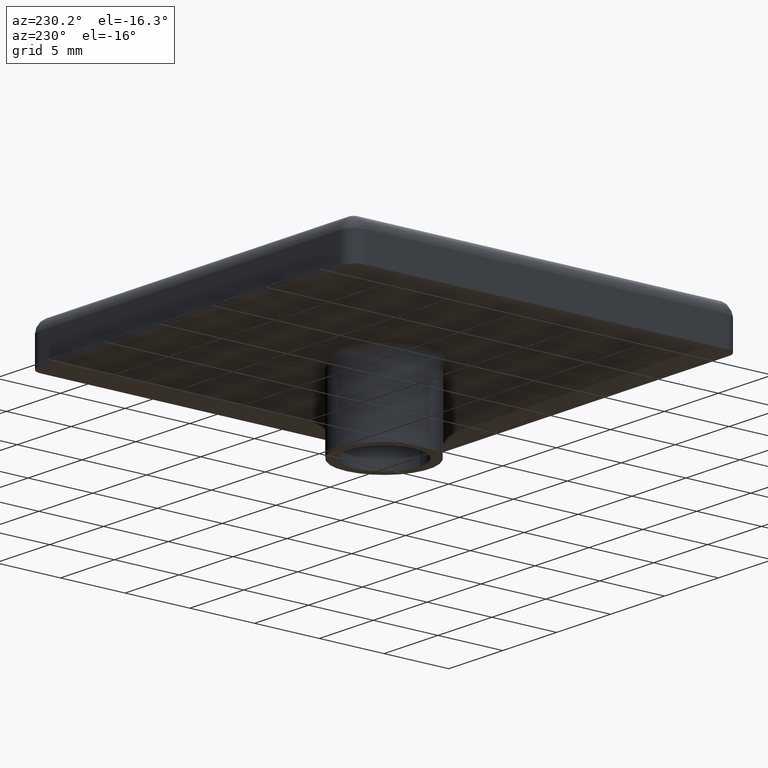
[diagram: clean part render]
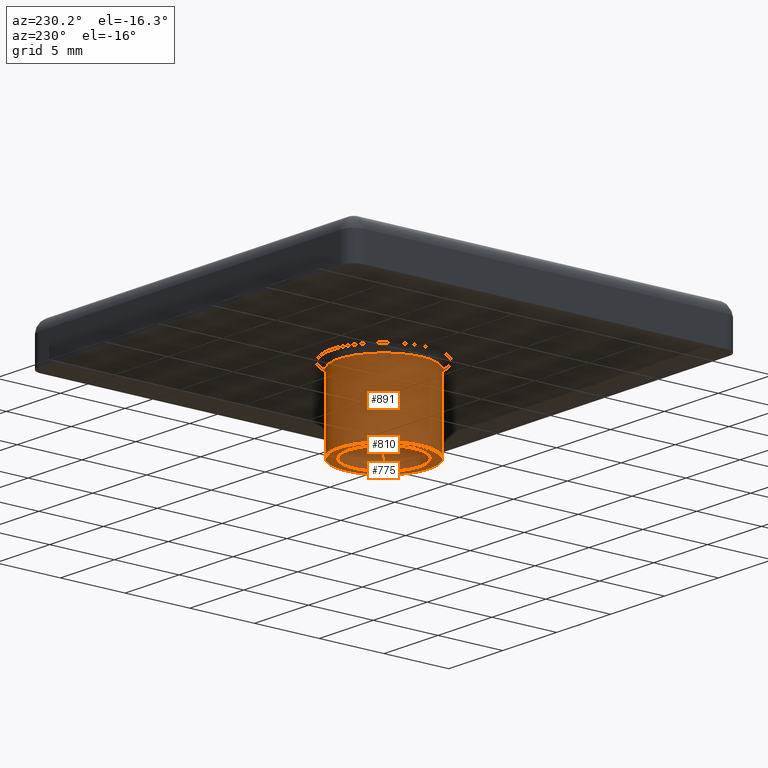
[diagram: same view with one multi-face feature highlighted, each face labeled with its STEP entity id]
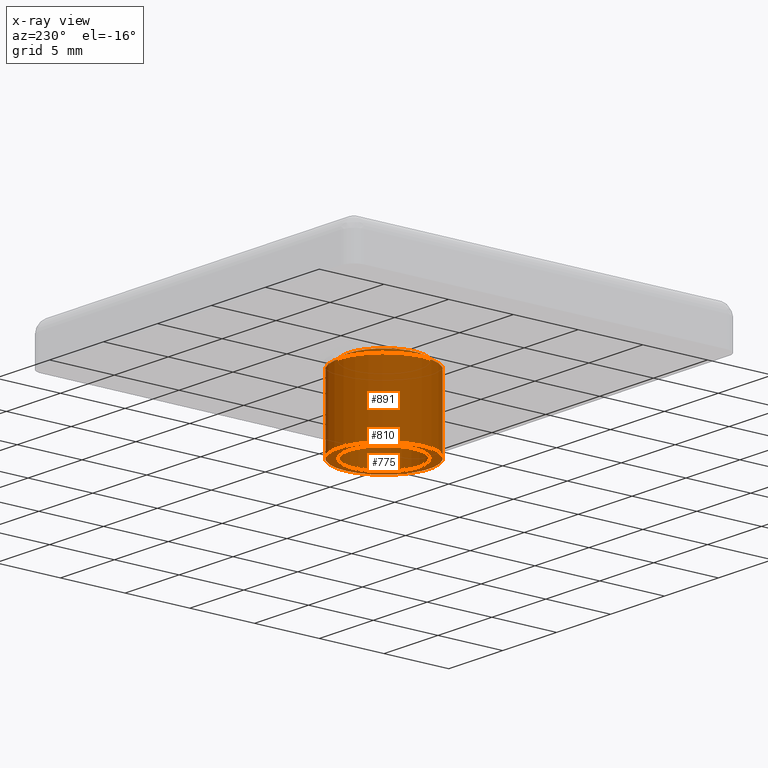
[diagram: x-ray of the same camera — body ghosted, the whole feature saturated]
A machine part, auxiliary view. The highlighted faces form ONE feature: a stepped (counterbored) hole: 2 coaxial cylindrical walls of radii 2.75 -> 3.5 mm joined by 1 annular planar shoulder face(s). The faces share edges in the B-rep.
The next image is the same camera in x-ray: the body ghosted and the whole hole feature saturated, so the bore chain is visible through the body.
Their STEP definitions:
[1] entity #891 (Cylinder):
#735=CARTESIAN_POINT('',(3.500000000000000,0.0,-6.0));
#736=VERTEX_POINT('',#735);
#737=CARTESIAN_POINT('',(-3.500000000000000,0.0,-6.0));
#738=VERTEX_POINT('',#737);
#739=CARTESIAN_POINT('',(0.0,0.0,-6.0));
#740=DIRECTION('',(0.0,0.0,-1.0));
#741=DIRECTION('',(1.0,0.0,0.0));
#742=AXIS2_PLACEMENT_3D('',#739,#740,#741);
#743=CIRCLE('',#742,3.500000000000000);
#744=EDGE_CURVE('',#736,#738,#743,.T.);
#746=CARTESIAN_POINT('',(0.0,0.0,-6.0));
#747=DIRECTION('',(0.0,0.0,-1.0));
#748=DIRECTION('',(1.0,0.0,0.0));
#749=AXIS2_PLACEMENT_3D('',#746,#747,#748);
#750=CIRCLE('',#749,3.500000000000000);
#751=EDGE_CURVE('',#738,#736,#750,.T.);
#857=CARTESIAN_POINT('',(0.0,0.0,0.0));
#858=DIRECTION('',(0.0,0.0,-1.0));
#859=DIRECTION('',(1.0,0.0,0.0));
#860=AXIS2_PLACEMENT_3D('',#857,#858,#859);
#861=CYLINDRICAL_SURFACE('',#860,3.500000000000000);
#862=ORIENTED_EDGE('',*,*,#751,.F.);
#863=ORIENTED_EDGE('',*,*,#744,.F.);
#864=CARTESIAN_POINT('',(3.500000000000000,0.0,-0.500000000000000));
#865=VERTEX_POINT('',#864);
#866=CARTESIAN_POINT('',(3.500000000000000,0.0,-0.500000000000000));
#867=DIRECTION('',(0.0,0.0,-1.0));
#868=VECTOR('',#867,5.500000000000000);
#869=LINE('',#866,#868);
#870=EDGE_CURVE('',#865,#736,#869,.T.);
#871=ORIENTED_EDGE('',*,*,#870,.F.);
#872=CARTESIAN_POINT('',(-3.500000000000000,0.0,-0.500000000000000));
#873=VERTEX_POINT('',#872);
#874=CARTESIAN_POINT('',(0.0,0.0,-0.500000000000000));
#875=DIRECTION('',(0.0,0.0,-1.0));
#876=DIRECTION('',(1.0,0.0,0.0));
#877=AXIS2_PLACEMENT_3D('',#874,#875,#876);
#878=CIRCLE('',#877,3.500000000000000);
#879=EDGE_CURVE('',#865,#873,#878,.T.);
#880=ORIENTED_EDGE('',*,*,#879,.T.);
#881=CARTESIAN_POINT('',(0.0,0.0,-0.500000000000000));
#882=DIRECTION('',(0.0,0.0,-1.0));
#883=DIRECTION('',(1.0,0.0,0.0));
#884=AXIS2_PLACEMENT_3D('',#881,#882,#883);
#885=CIRCLE('',#884,3.500000000000000);
#886=EDGE_CURVE('',#873,#865,#885,.T.);
#887=ORIENTED_EDGE('',*,*,#886,.T.);
#888=ORIENTED_EDGE('',*,*,#870,.T.);
#889=EDGE_LOOP('',(#862,#863,#871,#880,#887,#888));
#890=FACE_OUTER_BOUND('',#889,.T.);
#891=ADVANCED_FACE('',(#890),#861,.T.);
[2] entity #810 (Cylinder):
#755=CARTESIAN_POINT('',(0.0,2.750000000000000,-6.0));
#756=VERTEX_POINT('',#755);
#757=CARTESIAN_POINT('',(0.0,-2.750000000000007,-6.0));
#758=VERTEX_POINT('',#757);
#759=CARTESIAN_POINT('',(0.0,0.0,-6.0));
#760=DIRECTION('',(0.0,0.0,-1.0));
#761=DIRECTION('',(0.0,-1.0,0.0));
#762=AXIS2_PLACEMENT_3D('',#759,#760,#761);
#763=CIRCLE('',#762,2.750000000000000);
#764=EDGE_CURVE('',#756,#758,#763,.T.);
#766=CARTESIAN_POINT('',(0.0,0.0,-6.0));
#767=DIRECTION('',(0.0,0.0,-1.0));
#768=DIRECTION('',(0.0,-1.0,0.0));
#769=AXIS2_PLACEMENT_3D('',#766,#767,#768);
#770=CIRCLE('',#769,2.750000000000000);
#771=EDGE_CURVE('',#758,#756,#770,.T.);
#776=CARTESIAN_POINT('',(0.0,0.0,-6.0));
#777=DIRECTION('',(0.0,0.0,-1.0));
#778=DIRECTION('',(0.0,-1.0,0.0));
#779=AXIS2_PLACEMENT_3D('',#776,#777,#778);
#780=CYLINDRICAL_SURFACE('',#779,2.750000000000000);
#781=CARTESIAN_POINT('',(0.0,2.750000000000000,0.0));
#782=VERTEX_POINT('',#781);
#783=CARTESIAN_POINT('',(0.0,-2.750000000000007,0.0));
#784=VERTEX_POINT('',#783);
#785=CARTESIAN_POINT('',(0.0,0.0,0.0));
#786=DIRECTION('',(0.0,0.0,-1.0));
#787=DIRECTION('',(0.0,-1.0,0.0));
#788=AXIS2_PLACEMENT_3D('',#785,#786,#787);
#789=CIRCLE('',#788,2.750000000000000);
#790=EDGE_CURVE('',#782,#784,#789,.T.);
#791=ORIENTED_EDGE('',*,*,#790,.F.);
#792=CARTESIAN_POINT('',(0.0,0.0,0.0));
#793=DIRECTION('',(0.0,0.0,-1.0));
#794=DIRECTION('',(0.0,-1.0,0.0));
#795=AXIS2_PLACEMENT_3D('',#792,#793,#794);
#796=CIRCLE('',#795,2.750000000000000);
#797=EDGE_CURVE('',#784,#782,#796,.T.);
#798=ORIENTED_EDGE('',*,*,#797,.F.);
#799=CARTESIAN_POINT('',(0.0,-2.750000000000007,-6.0));
#800=DIRECTION('',(0.0,0.0,1.0));
#801=VECTOR('',#800,6.0);
#802=LINE('',#799,#801);
#803=EDGE_CURVE('',#758,#784,#802,.T.);
#804=ORIENTED_EDGE('',*,*,#803,.F.);
#805=ORIENTED_EDGE('',*,*,#771,.T.);
#806=ORIENTED_EDGE('',*,*,#764,.T.);
#807=ORIENTED_EDGE('',*,*,#803,.T.);
#808=EDGE_LOOP('',(#791,#798,#804,#805,#806,#807));
#809=FACE_OUTER_BOUND('',#808,.T.);
#810=ADVANCED_FACE('',(#809),#780,.F.);
[3] entity #775 (Plane):
#730=CARTESIAN_POINT('',(4.200073019272203,4.200073019280751,-6.0));
#731=DIRECTION('',(0.0,0.0,-1.0));
#732=DIRECTION('',(0.0,-1.0,0.0));
#733=AXIS2_PLACEMENT_3D('',#730,#731,#732);
#734=PLANE('',#733);
#735=CARTESIAN_POINT('',(3.500000000000000,0.0,-6.0));
#736=VERTEX_POINT('',#735);
#737=CARTESIAN_POINT('',(-3.500000000000000,0.0,-6.0));
#738=VERTEX_POINT('',#737);
#739=CARTESIAN_POINT('',(0.0,0.0,-6.0));
#740=DIRECTION('',(0.0,0.0,-1.0));
#741=DIRECTION('',(1.0,0.0,0.0));
#742=AXIS2_PLACEMENT_3D('',#739,#740,#741);
#743=CIRCLE('',#742,3.500000000000000);
#744=EDGE_CURVE('',#736,#738,#743,.T.);
#745=ORIENTED_EDGE('',*,*,#744,.T.);
#746=CARTESIAN_POINT('',(0.0,0.0,-6.0));
#747=DIRECTION('',(0.0,0.0,-1.0));
#748=DIRECTION('',(1.0,0.0,0.0));
#749=AXIS2_PLACEMENT_3D('',#746,#747,#748);
#750=CIRCLE('',#749,3.500000000000000);
#751=EDGE_CURVE('',#738,#736,#750,.T.);
#752=ORIENTED_EDGE('',*,*,#751,.T.);
#753=EDGE_LOOP('',(#745,#752));
#754=FACE_OUTER_BOUND('',#753,.T.);
#755=CARTESIAN_POINT('',(0.0,2.750000000000000,-6.0));
#756=VERTEX_POINT('',#755);
#757=CARTESIAN_POINT('',(0.0,-2.750000000000007,-6.0));
#758=VERTEX_POINT('',#757);
#759=CARTESIAN_POINT('',(0.0,0.0,-6.0));
#760=DIRECTION('',(0.0,0.0,-1.0));
#761=DIRECTION('',(0.0,-1.0,0.0));
#762=AXIS2_PLACEMENT_3D('',#759,#760,#761);
#763=CIRCLE('',#762,2.750000000000000);
#764=EDGE_CURVE('',#756,#758,#763,.T.);
#765=ORIENTED_EDGE('',*,*,#764,.F.);
#766=CARTESIAN_POINT('',(0.0,0.0,-6.0));
#767=DIRECTION('',(0.0,0.0,-1.0));
#768=DIRECTION('',(0.0,-1.0,0.0));
#769=AXIS2_PLACEMENT_3D('',#766,#767,#768);
#770=CIRCLE('',#769,2.750000000000000);
#771=EDGE_CURVE('',#758,#756,#770,.T.);
#772=ORIENTED_EDGE('',*,*,#771,.F.);
#773=EDGE_LOOP('',(#765,#772));
#774=FACE_BOUND('',#773,.T.);
#775=ADVANCED_FACE('',(#754,#774),#734,.T.);